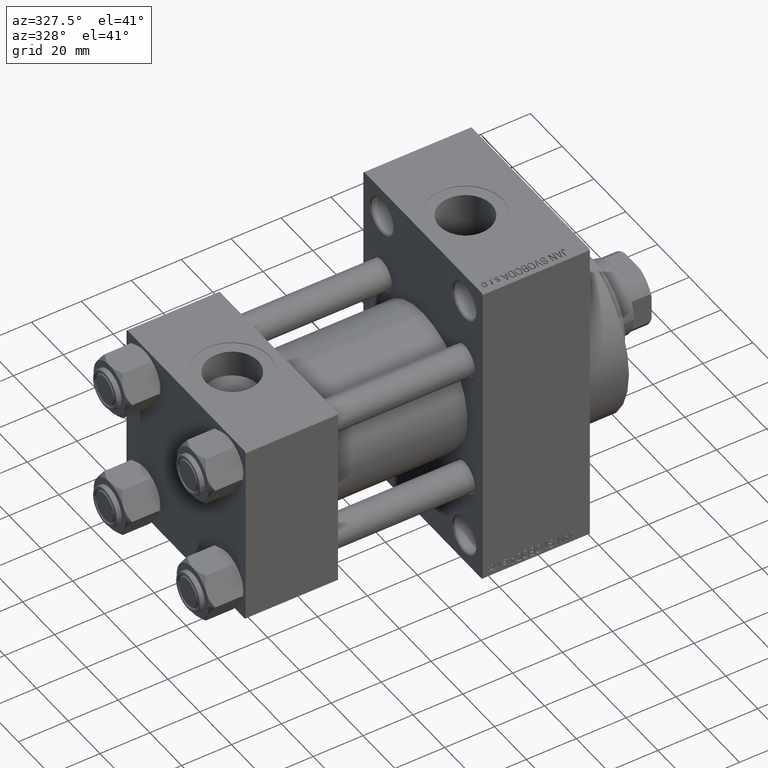
[diagram: clean part render]
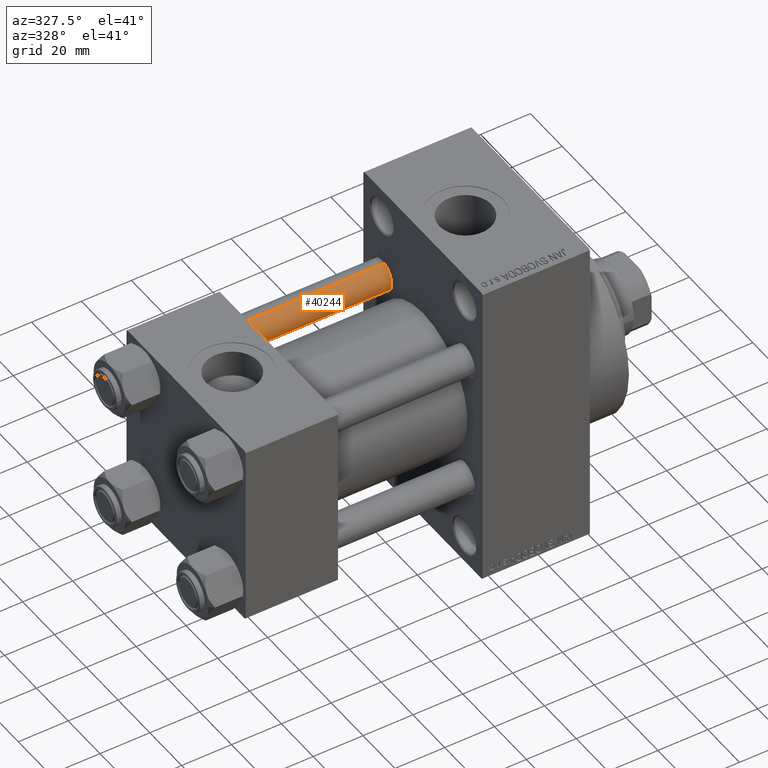
[diagram: same view with one face highlighted and labeled with its STEP entity id]
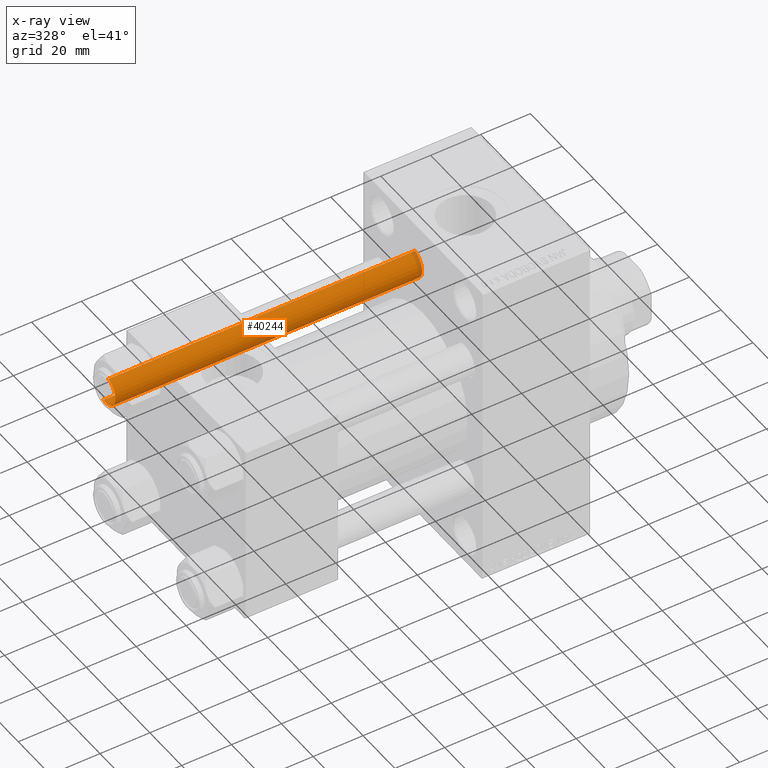
[diagram: x-ray of the same camera — body ghosted, the highlighted face saturated]
A machine part, auxiliary view. The second image highlights one B-rep face of the part: STEP entity #40244.
The next image is the same camera in x-ray: the body ghosted, the highlighted face saturated — about 1% of this face is hidden behind the body in this view.
In plain terms, the highlighted cylindrical surface (edge-blend (fillet) strip) has radius 6 mm, axis along (-1, -0, 0).
Its self-contained STEP definition (entity closure, byte-faithful):
#1685 = AXIS2_PLACEMENT_3D ( 'NONE', #8895, #31896, #4932 ) ;
#2803 = ORIENTED_EDGE ( 'NONE', *, *, #19419, .T. ) ;
#3447 = VERTEX_POINT ( 'NONE', #45218 ) ;
#4932 = DIRECTION ( 'NONE',  ( -1.000000000000000000, 0.000000000000000000, 0.000000000000000000 ) ) ;
#5747 = DIRECTION ( 'NONE',  ( 1.000000000000000000, 0.000000000000000000, 0.000000000000000000 ) ) ;
#6050 = CARTESIAN_POINT ( 'NONE',  ( -6.000000000000000888, 0.000000000000000000, 123.5000000000000426 ) ) ;
#6888 = EDGE_LOOP ( 'NONE', ( #48429, #27753, #9382, #2803 ) ) ;
#8895 = CARTESIAN_POINT ( 'NONE',  ( 0.000000000000000000, 0.000000000000000000, 124.0000000000000000 ) ) ;
#9382 = ORIENTED_EDGE ( 'NONE', *, *, #16396, .T. ) ;
#9687 = DIRECTION ( 'NONE',  ( -0.000000000000000000, -0.000000000000000000, 1.000000000000000000 ) ) ;
#10329 = DIRECTION ( 'NONE',  ( 0.000000000000000000, 0.000000000000000000, -1.000000000000000000 ) ) ;
#10873 = AXIS2_PLACEMENT_3D ( 'NONE', #23793, #9687, #5747 ) ;
#12187 = AXIS2_PLACEMENT_3D ( 'NONE', #37542, #10329, #48198 ) ;
#16396 = EDGE_CURVE ( 'NONE', #41632, #48034, #23615, .T. ) ;
#18424 = EDGE_CURVE ( 'NONE', #46926, #3447, #30045, .T. ) ;
#19419 = EDGE_CURVE ( 'NONE', #48034, #3447, #30639, .T. ) ;
#20733 = FACE_OUTER_BOUND ( 'NONE', #6888, .T. ) ;
#23615 = LINE ( 'NONE', #28511, #40843 ) ;
#23793 = CARTESIAN_POINT ( 'NONE',  ( 0.000000000000000000, 0.000000000000000000, 0.4999999999999865663 ) ) ;
#26324 = CARTESIAN_POINT ( 'NONE',  ( -6.000000000000000888, 0.000000000000000000, 0.4999999999999865663 ) ) ;
#27753 = ORIENTED_EDGE ( 'NONE', *, *, #47219, .T. ) ;
#28511 = CARTESIAN_POINT ( 'NONE',  ( -6.000000000000000888, 0.000000000000000000, 124.0000000000000000 ) ) ;
#30045 = LINE ( 'NONE', #43646, #45626 ) ;
#30639 = CIRCLE ( 'NONE', #10873, 6.000000000000000888 ) ;
#31896 = DIRECTION ( 'NONE',  ( -0.000000000000000000, -0.000000000000000000, -1.000000000000000000 ) ) ;
#35015 = DIRECTION ( 'NONE',  ( -0.000000000000000000, -0.000000000000000000, -1.000000000000000000 ) ) ;
#37542 = CARTESIAN_POINT ( 'NONE',  ( 0.000000000000000000, 0.000000000000000000, 123.5000000000000426 ) ) ;
#38844 = CYLINDRICAL_SURFACE ( 'NONE', #1685, 6.000000000000000888 ) ;
#39214 = DIRECTION ( 'NONE',  ( -0.000000000000000000, -0.000000000000000000, -1.000000000000000000 ) ) ;
#40244 = ADVANCED_FACE ( 'NONE', ( #20733 ), #38844, .T. ) ;
#40843 = VECTOR ( 'NONE', #35015, 1000.000000000000000 ) ;
#41632 = VERTEX_POINT ( 'NONE', #6050 ) ;
#43646 = CARTESIAN_POINT ( 'NONE',  ( 6.000000000000000888, 7.347880794884120722E-16, 124.0000000000000000 ) ) ;
#45218 = CARTESIAN_POINT ( 'NONE',  ( 6.000000000000000888, 7.347880794884120722E-16, 0.4999999999999865663 ) ) ;
#45626 = VECTOR ( 'NONE', #39214, 1000.000000000000000 ) ;
#46926 = VERTEX_POINT ( 'NONE', #48800 ) ;
#47219 = EDGE_CURVE ( 'NONE', #46926, #41632, #48559, .T. ) ;
#48034 = VERTEX_POINT ( 'NONE', #26324 ) ;
#48198 = DIRECTION ( 'NONE',  ( 1.000000000000000000, 0.000000000000000000, 0.000000000000000000 ) ) ;
#48429 = ORIENTED_EDGE ( 'NONE', *, *, #18424, .F. ) ;
#48559 = CIRCLE ( 'NONE', #12187, 6.000000000000000888 ) ;
#48800 = CARTESIAN_POINT ( 'NONE',  ( 6.000000000000000888, 7.347880794884120722E-16, 123.5000000000000426 ) ) ;